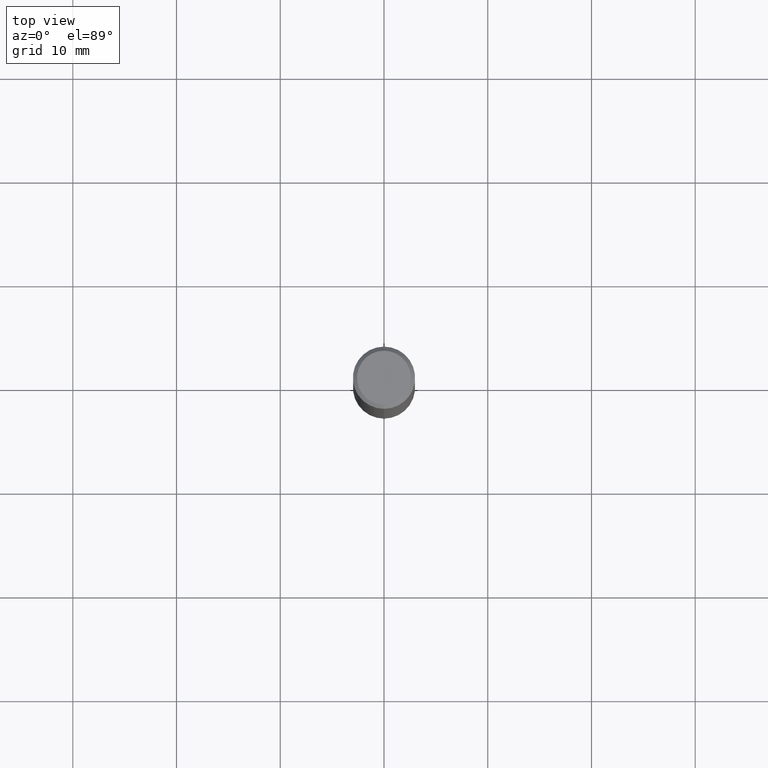
[diagram: clean part render]
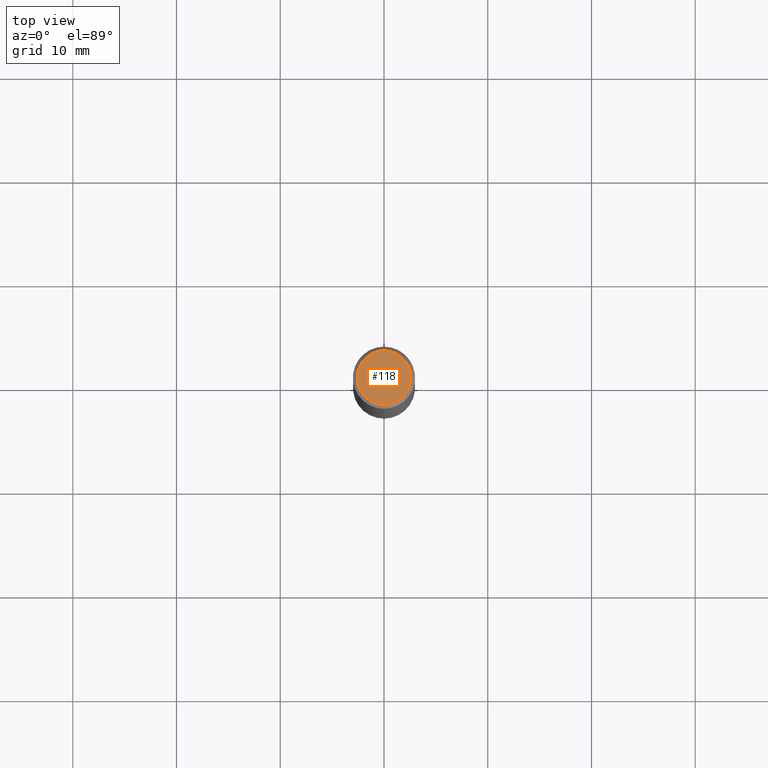
[diagram: same view with one face highlighted and labeled with its STEP entity id]
A machine part, top view. The second image highlights one B-rep face of the part: STEP entity #118.
In plain terms, the highlighted planar face has unit normal (-0, 0, 1).
Its self-contained STEP definition (entity closure, byte-faithful):
#118=ADVANCED_FACE('',(#259),#260,.T.);
#122=EDGE_CURVE('',#170,#160,#264,.T.);
#160=VERTEX_POINT('',#306);
#170=VERTEX_POINT('',#317);
#196=EDGE_CURVE('',#160,#170,#347,.T.);
#259=FACE_OUTER_BOUND('',#413,.T.);
#260=PLANE('',#414);
#264=CIRCLE('',#420,2.6);
#306=CARTESIAN_POINT('',(0.0,2.6,0.0));
#317=CARTESIAN_POINT('',(3.18397651993818E-016,-2.6,0.0));
#347=CIRCLE('',#524,2.6);
#413=EDGE_LOOP('',(#575,#576));
#414=AXIS2_PLACEMENT_3D('',#577,#578,#579);
#420=AXIS2_PLACEMENT_3D('',#583,#584,#585);
#524=AXIS2_PLACEMENT_3D('',#685,#686,#687);
#575=ORIENTED_EDGE('',*,*,#196,.F.);
#576=ORIENTED_EDGE('',*,*,#122,.F.);
#577=CARTESIAN_POINT('',(0.0,1.3,0.0));
#578=DIRECTION('',(-0.0,0.0,1.0));
#579=DIRECTION('',(0.0,-1.0,0.0));
#583=CARTESIAN_POINT('',(0.0,0.0,0.0));
#584=DIRECTION('',(0.0,0.0,-1.0));
#585=DIRECTION('',(0.0,1.0,0.0));
#685=CARTESIAN_POINT('',(0.0,0.0,0.0));
#686=DIRECTION('',(0.0,0.0,-1.0));
#687=DIRECTION('',(0.0,1.0,0.0));